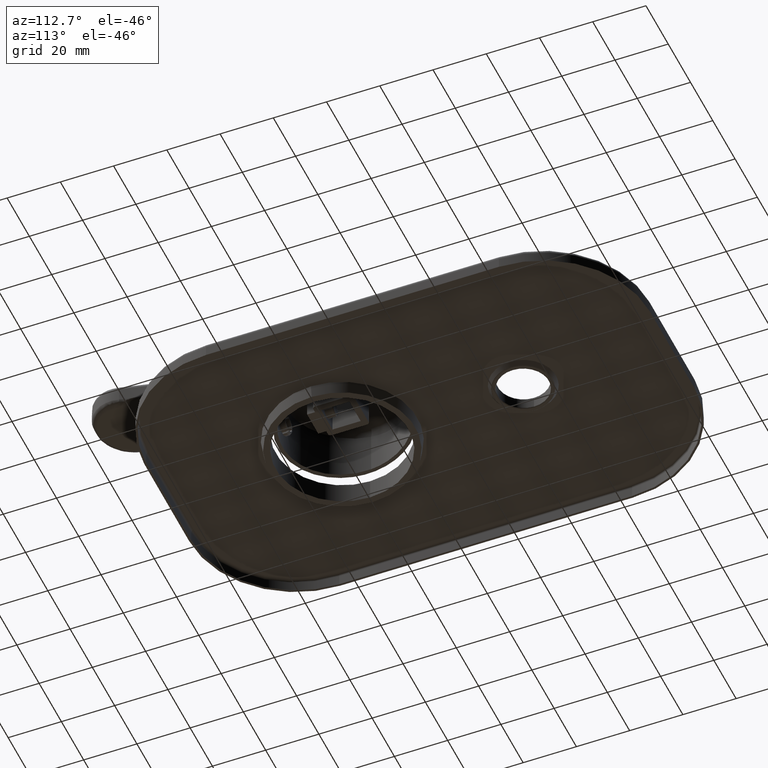
[diagram: clean part render]
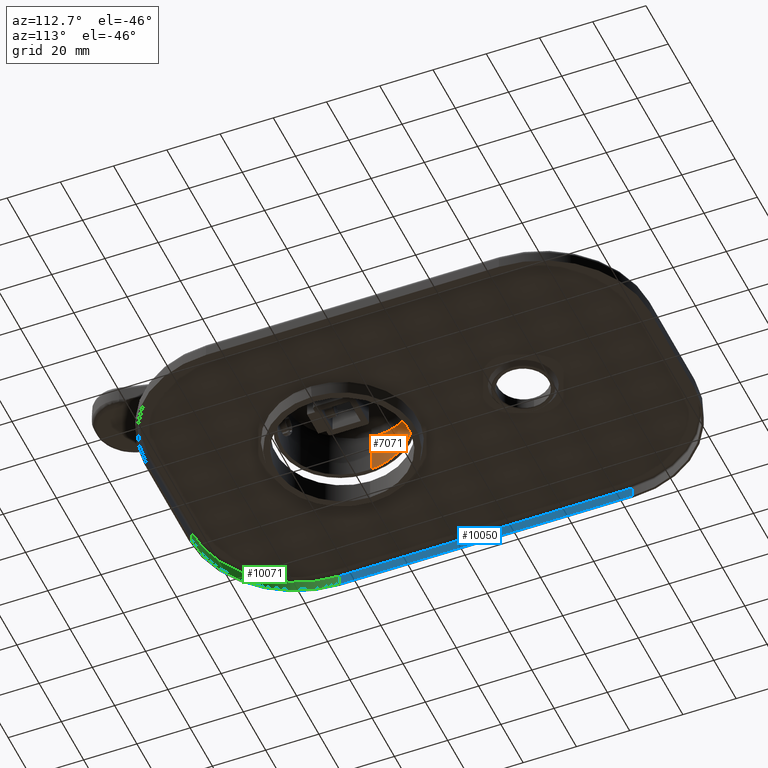
[diagram: same view with three faces highlighted in distinct colors, each labeled with its STEP entity id]
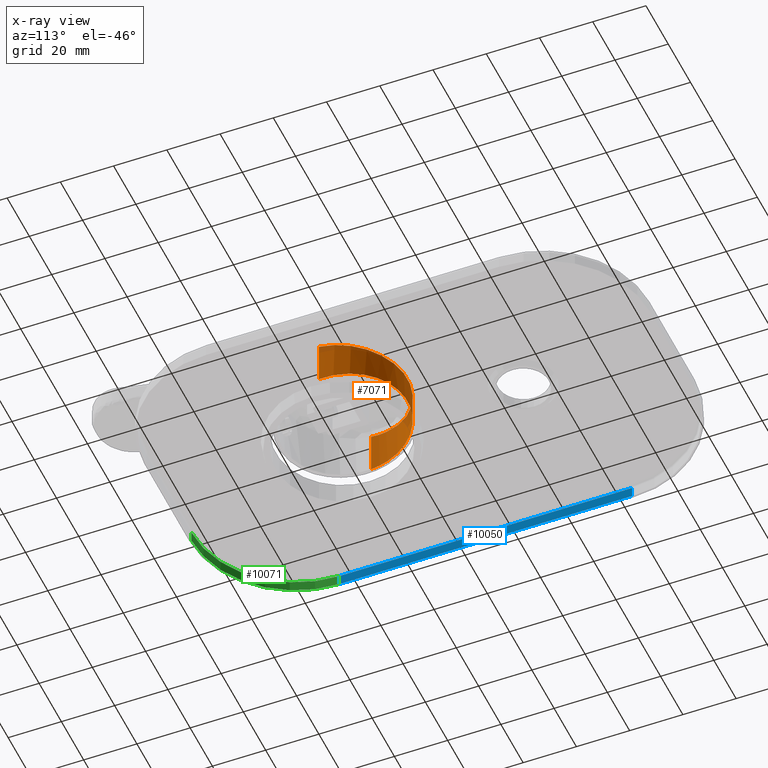
[diagram: x-ray of the same camera — body ghosted, the three highlighted faces saturated]
A machine part, auxiliary view with three faces highlighted in distinct colors.
The next image is the same camera in x-ray (body ghosted, the three faces saturated) — at least one of them is partly hidden behind the body in this view.
Their STEP definitions:

[orange] entity #7071 — the highlighted cylindrical surface (partial cylindrical patch) has radius 23.5 mm, axis along (0, 0, 1).
#321=CARTESIAN_POINT('',(-2.35E1,0.E0,2.187216588148E0));
#355=CARTESIAN_POINT('',(2.35E1,0.E0,2.187216588148E0));
#436=DIRECTION('',(3.132787176948E-7,7.126919612064E-12,1.E0));
#437=VECTOR('',#436,1.614774316207E1);
#438=CARTESIAN_POINT('',(-2.35E1,0.E0,2.187216588148E0));
#439=LINE('',#438,#437);
#2617=CARTESIAN_POINT('',(2.35E1,0.E0,2.187216588148E0));
#2618=CARTESIAN_POINT('',(2.35E1,1.384750779824E0,2.308366583191E0));
#2619=CARTESIAN_POINT('',(2.325397954941E1,4.257898723790E0,2.559734456921E0));
#2620=CARTESIAN_POINT('',(2.200712852381E1,8.677018687111E0,2.946357356473E0));
#2621=CARTESIAN_POINT('',(2.018256875826E1,1.222565359451E1,3.256822681863E0));
#2622=CARTESIAN_POINT('',(1.827813407128E1,1.483670740611E1,3.485260290234E0));
#2623=CARTESIAN_POINT('',(1.664680307642E1,1.664678915044E1,3.643621922918E0));
#2624=CARTESIAN_POINT('',(1.483670977035E1,1.827819213944E1,3.786351190098E0));
#2625=CARTESIAN_POINT('',(1.287839366447E1,1.970624173984E1,3.911289341085E0));
#2626=CARTESIAN_POINT('',(1.080629079909E1,2.091320798303E1,4.016885204623E0));
#2627=CARTESIAN_POINT('',(8.656980760088E0,2.188897129102E1,4.102253432357E0));
#2628=CARTESIAN_POINT('',(6.467140208785E0,2.263105730269E1,4.167177545739E0));
#2629=CARTESIAN_POINT('',(4.637662283105E0,2.305855338595E1,4.204578606726E0));
#2630=CARTESIAN_POINT('',(3.187175043711E0,2.329142091812E1,4.224951875894E0));
#2631=CARTESIAN_POINT('',(2.109309592456E0,2.341338131674E1,4.235622028172E0));
#2632=CARTESIAN_POINT('',(1.222436873778E0,2.347281016058E1,4.240821378295E0));
#2633=CARTESIAN_POINT('',(5.206589211889E-1,2.349617482036E1,4.242865521153E0));
#2634=CARTESIAN_POINT('',(0.E0,2.350191258982E1,4.243367510934E0));
#2635=CARTESIAN_POINT('',(-5.206589211889E-1,2.349617482036E1,
4.242865521153E0));
#2636=CARTESIAN_POINT('',(-1.222436873778E0,2.347281016058E1,4.240821378295E0));
#2637=CARTESIAN_POINT('',(-2.109309592456E0,2.341338131674E1,4.235622028172E0));
#2638=CARTESIAN_POINT('',(-3.187175043711E0,2.329142091812E1,4.224951875894E0));
#2639=CARTESIAN_POINT('',(-4.637662283105E0,2.305855338595E1,4.204578606726E0));
#2640=CARTESIAN_POINT('',(-6.467140208785E0,2.263105730269E1,4.167177545739E0));
#2641=CARTESIAN_POINT('',(-8.656980760088E0,2.188897129102E1,4.102253432357E0));
#2642=CARTESIAN_POINT('',(-1.080629079909E1,2.091320798303E1,4.016885204623E0));
#2643=CARTESIAN_POINT('',(-1.287839366447E1,1.970624173984E1,3.911289341085E0));
#2644=CARTESIAN_POINT('',(-1.483670977035E1,1.827819213944E1,3.786351190098E0));
#2645=CARTESIAN_POINT('',(-1.664680307642E1,1.664678915044E1,3.643621922918E0));
#2646=CARTESIAN_POINT('',(-1.827813407128E1,1.483670740611E1,3.485260290234E0));
#2647=CARTESIAN_POINT('',(-2.018256875826E1,1.222565359451E1,3.256822681863E0));
#2648=CARTESIAN_POINT('',(-2.200712852381E1,8.677018687111E0,2.946357356473E0));
#2649=CARTESIAN_POINT('',(-2.325397954941E1,4.257898723790E0,2.559734456921E0));
#2650=CARTESIAN_POINT('',(-2.35E1,1.384750779824E0,2.308366583191E0));
#2651=CARTESIAN_POINT('',(-2.35E1,0.E0,2.187216588148E0));
#2653=CARTESIAN_POINT('',(2.349999494126E1,-1.150892519556E-10,
1.833495975025E1));
#2654=CARTESIAN_POINT('',(2.349998723345E1,3.296706615822E-1,1.829385961980E1));
#2655=CARTESIAN_POINT('',(2.348613029275E1,9.890371940261E-1,1.821165723506E1));
#2656=CARTESIAN_POINT('',(2.342369854109E1,1.976504181488E0,1.808851639280E1));
#2657=CARTESIAN_POINT('',(2.331977624050E1,2.960455494599E0,1.796581828949E1));
#2658=CARTESIAN_POINT('',(2.317455763746E1,3.939034014267E0,1.784381654520E1));
#2659=CARTESIAN_POINT('',(2.298834012052E1,4.910416690857E0,1.772270514450E1));
#2660=CARTESIAN_POINT('',(2.276147265262E1,5.872922301312E0,1.760269109495E1));
#2661=CARTESIAN_POINT('',(2.249437655995E1,6.824863760643E0,1.748399304046E1));
#2662=CARTESIAN_POINT('',(2.218753818184E1,7.764586273508E0,1.736683570821E1));
#2663=CARTESIAN_POINT('',(2.184151573942E1,8.690438405771E0,1.725139690951E1));
#2664=CARTESIAN_POINT('',(2.145697294931E1,9.600711400308E0,1.713789078569E1));
#2665=CARTESIAN_POINT('',(2.103465093233E1,1.049373999671E1,1.702653284359E1));
#2666=CARTESIAN_POINT('',(2.057536735936E1,1.136789762952E1,1.691755019792E1));
#2667=CARTESIAN_POINT('',(2.008000674232E1,1.222161522008E1,1.681110831043E1));
#2668=CARTESIAN_POINT('',(1.954947869912E1,1.305343480934E1,1.670738673581E1));
#2669=CARTESIAN_POINT('',(1.898475461247E1,1.386193018154E1,1.660657013343E1));
#2670=CARTESIAN_POINT('',(1.838685483289E1,1.464572781557E1,1.650885334448E1));
#2671=CARTESIAN_POINT('',(1.775685831638E1,1.540349014571E1,1.641437619937E1));
#2672=CARTESIAN_POINT('',(1.709592693870E1,1.613389413172E1,1.632329964465E1));
#2673=CARTESIAN_POINT('',(1.640527404870E1,1.683567524961E1,1.623578741168E1));
#2674=CARTESIAN_POINT('',(1.568616173051E1,1.750762744258E1,1.615201470076E1));
#2675=CARTESIAN_POINT('',(1.493989245064E1,1.814860922513E1,1.607209968982E1));
#2676=CARTESIAN_POINT('',(1.416779894557E1,1.875754779634E1,1.599616918638E1));
#2677=CARTESIAN_POINT('',(1.337125727326E1,1.933342537972E1,1.592435506142E1));
#2678=CARTESIAN_POINT('',(1.255167444036E1,1.987528802250E1,1.585680095289E1));
#2679=CARTESIAN_POINT('',(1.171049100493E1,2.038224136446E1,1.579359856918E1));
#2680=CARTESIAN_POINT('',(1.084919117846E1,2.085344519086E1,1.573484260359E1));
#2681=CARTESIAN_POINT('',(9.969289489096E0,2.128812260600E1,1.568063373799E1));
#2682=CARTESIAN_POINT('',(9.072324128921E0,2.168556244156E1,1.563108475868E1));
#2683=CARTESIAN_POINT('',(8.159847477951E0,2.204512146607E1,1.558626150301E1));
#2684=CARTESIAN_POINT('',(7.233431773173E0,2.236621969730E1,1.554622282904E1));
#2685=CARTESIAN_POINT('',(6.294672012761E0,2.264833924854E1,1.551103577982E1));
#2686=CARTESIAN_POINT('',(5.345174618222E0,2.289102771055E1,1.548077938712E1));
#2687=CARTESIAN_POINT('',(4.386554085718E0,2.309389715070E1,1.545549409976E1));
#2688=CARTESIAN_POINT('',(3.420446212600E0,2.325662081512E1,1.543520387361E1));
#2689=CARTESIAN_POINT('',(2.448499895331E0,2.337893616192E1,1.541994246863E1));
#2690=CARTESIAN_POINT('',(1.472367237750E0,2.346064606791E1,1.540975477986E1));
#2691=CARTESIAN_POINT('',(4.937010068293E-1,2.350161770514E1,1.540465657359E1));
#2692=CARTESIAN_POINT('',(-4.858306750824E-1,2.350178202868E1,
1.540463665399E1));
#2693=CARTESIAN_POINT('',(-1.464555074153E0,2.346113597682E1,1.540969493991E1));
#2694=CARTESIAN_POINT('',(-2.440803181529E0,2.337974250023E1,1.541984084209E1));
#2695=CARTESIAN_POINT('',(-3.412918119584E0,2.325772884511E1,1.543506499236E1));
#2696=CARTESIAN_POINT('',(-4.379241898225E0,2.309528744148E1,1.545532113388E1));
#2697=CARTESIAN_POINT('',(-5.338119011985E0,2.289267710027E1,1.548057509539E1));
#2698=CARTESIAN_POINT('',(-6.287906208918E0,2.265022195039E1,1.551080013223E1));
#2699=CARTESIAN_POINT('',(-7.226979982436E0,2.236830886532E1,1.554596150078E1));
#2700=CARTESIAN_POINT('',(-8.153726447089E0,2.204738998306E1,1.558597883666E1));
#2701=CARTESIAN_POINT('',(-9.066542687370E0,2.168798416486E1,1.563078424060E1));
#2702=CARTESIAN_POINT('',(-9.963847373611E0,2.129067422817E1,1.568031487268E1));
#2703=CARTESIAN_POINT('',(-1.084408366746E1,2.085610554521E1,1.573450998371E1));
#2704=CARTESIAN_POINT('',(-1.170571470421E1,2.038498878798E1,1.579325599577E1));
#2705=CARTESIAN_POINT('',(-1.254722540109E1,1.987810103855E1,1.585645168423E1));
#2706=CARTESIAN_POINT('',(-1.336713087097E1,1.933628271821E1,1.592399826417E1));
#2707=CARTESIAN_POINT('',(-1.416398768788E1,1.876043005490E1,1.599580887711E1));
#2708=CARTESIAN_POINT('',(-1.493638877405E1,1.815149714970E1,1.607173942567E1));
#2709=CARTESIAN_POINT('',(-1.568295705767E1,1.751050255601E1,1.615165769708E1));
#2710=CARTESIAN_POINT('',(-1.640235851910E1,1.683852022076E1,1.623543229315E1));
#2711=CARTESIAN_POINT('',(-1.709328881256E1,1.613669368869E1,1.632294962230E1));
#2712=CARTESIAN_POINT('',(-1.775448668783E1,1.540622844597E1,1.641403442099E1));
#2713=CARTESIAN_POINT('',(-1.838473858864E1,1.464838922318E1,1.650852296632E1));
#2714=CARTESIAN_POINT('',(-1.898288227006E1,1.386449930923E1,1.660624959225E1));
#2715=CARTESIAN_POINT('',(-1.954783646847E1,1.305589939712E1,1.670707858801E1));
#2716=CARTESIAN_POINT('',(-2.007858088618E1,1.222396331364E1,1.681081511587E1));
#2717=CARTESIAN_POINT('',(-2.057414347703E1,1.137011858474E1,1.691727477952E1));
#2718=CARTESIAN_POINT('',(-2.103361407652E1,1.049582455939E1,1.702627269174E1));
#2719=CARTESIAN_POINT('',(-2.145610763614E1,9.602652002016E0,1.713764778191E1));
#2720=CARTESIAN_POINT('',(-2.184080670305E1,8.692227728132E0,1.725117309381E1));
#2721=CARTESIAN_POINT('',(-2.218697005286E1,7.766217829750E0,1.736663353699E1));
#2722=CARTESIAN_POINT('',(-2.249393363072E1,6.826332651438E0,1.748381003493E1));
#2723=CARTESIAN_POINT('',(-2.276113878787E1,5.874226584477E0,1.760252803797E1));
#2724=CARTESIAN_POINT('',(-2.298810069503E1,4.911550150356E0,1.772256349985E1));
#2725=CARTESIAN_POINT('',(-2.317439811677E1,3.939988450947E0,1.784369934372E1));
#2726=CARTESIAN_POINT('',(-2.331968239711E1,2.961218395264E0,1.796572271527E1));
#2727=CARTESIAN_POINT('',(-2.342365602360E1,1.977045908337E0,1.808844708317E1));
#2728=CARTESIAN_POINT('',(-2.348612241668E1,9.893279461494E-1,
1.821162057151E1));
#2729=CARTESIAN_POINT('',(-2.349998594639E1,3.297709482061E-1,
1.829384614224E1));
#2730=CARTESIAN_POINT('',(-2.349999494126E1,1.150877868158E-10,
1.833495975022E1));
#2732=DIRECTION('',(-3.132787176944E-7,-7.127073297847E-12,1.E0));
#2733=VECTOR('',#2732,1.614774316210E1);
#2734=CARTESIAN_POINT('',(2.35E1,0.E0,2.187216588148E0));
#2735=LINE('',#2734,#2733);
#3639=VERTEX_POINT('',#2653);
#3640=VERTEX_POINT('',#2730);
#3645=VERTEX_POINT('',#321);
#3646=VERTEX_POINT('',#355);
#7060=CARTESIAN_POINT('',(0.E0,0.E0,0.E0));
#7061=DIRECTION('',(0.E0,0.E0,1.E0));
#7062=DIRECTION('',(-1.E0,0.E0,0.E0));
#7063=AXIS2_PLACEMENT_3D('',#7060,#7061,#7062);
#7064=CYLINDRICAL_SURFACE('',#7063,2.35E1);
#7065=ORIENTED_EDGE('',*,*,#4321,.T.);
#7066=ORIENTED_EDGE('',*,*,#4259,.T.);
#7067=ORIENTED_EDGE('',*,*,#4123,.F.);
#7068=ORIENTED_EDGE('',*,*,#4256,.F.);
#7069=EDGE_LOOP('',(#7065,#7066,#7067,#7068));
#7070=FACE_OUTER_BOUND('',#7069,.F.);
#7071=ADVANCED_FACE('',(#7070),#7064,.F.);
#2652=B_SPLINE_CURVE_WITH_KNOTS('',3,(#2617,#2618,#2619,#2620,#2621,#2622,#2623,
#2624,#2625,#2626,#2627,#2628,#2629,#2630,#2631,#2632,#2633,#2634,#2635,#2636,
#2637,#2638,#2639,#2640,#2641,#2642,#2643,#2644,#2645,#2646,#2647,#2648,#2649,
#2650,#2651),.UNSPECIFIED.,.F.,.F.,(4,1,1,1,1,1,1,1,1,1,1,1,1,1,1,1,1,1,1,1,1,1,
1,1,1,1,1,1,1,1,1,1,4),(0.E0,6.25E-2,1.25E-1,1.875E-1,2.1875E-1,2.5E-1,
2.8125E-1,3.125E-1,3.4375E-1,3.75E-1,4.0625E-1,4.375E-1,4.53125E-1,4.6875E-1,
4.84375E-1,4.921875E-1,5.E-1,5.078125E-1,5.15625E-1,5.3125E-1,5.46875E-1,
5.625E-1,5.9375E-1,6.25E-1,6.5625E-1,6.875E-1,7.1875E-1,7.5E-1,7.8125E-1,
8.125E-1,8.75E-1,9.375E-1,1.E0),.UNSPECIFIED.);
#2731=B_SPLINE_CURVE_WITH_KNOTS('',3,(#2653,#2654,#2655,#2656,#2657,#2658,#2659,
#2660,#2661,#2662,#2663,#2664,#2665,#2666,#2667,#2668,#2669,#2670,#2671,#2672,
#2673,#2674,#2675,#2676,#2677,#2678,#2679,#2680,#2681,#2682,#2683,#2684,#2685,
#2686,#2687,#2688,#2689,#2690,#2691,#2692,#2693,#2694,#2695,#2696,#2697,#2698,
#2699,#2700,#2701,#2702,#2703,#2704,#2705,#2706,#2707,#2708,#2709,#2710,#2711,
#2712,#2713,#2714,#2715,#2716,#2717,#2718,#2719,#2720,#2721,#2722,#2723,#2724,
#2725,#2726,#2727,#2728,#2729,#2730),.UNSPECIFIED.,.F.,.F.,(4,1,1,1,1,1,1,1,1,1,
1,1,1,1,1,1,1,1,1,1,1,1,1,1,1,1,1,1,1,1,1,1,1,1,1,1,1,1,1,1,1,1,1,1,1,1,1,1,1,1,
1,1,1,1,1,1,1,1,1,1,1,1,1,1,1,1,1,1,1,1,1,1,1,1,1,4),(0.E0,1.333333333333E-2,
2.666666666667E-2,4.E-2,5.333333333333E-2,6.666666666667E-2,8.E-2,
9.333333333333E-2,1.066666666667E-1,1.2E-1,1.333333333333E-1,1.466666666667E-1,
1.6E-1,1.733333333333E-1,1.866666666667E-1,2.E-1,2.133333333333E-1,
2.266666666667E-1,2.4E-1,2.533333333333E-1,2.666666666667E-1,2.8E-1,
2.933333333333E-1,3.066666666667E-1,3.2E-1,3.333333333333E-1,3.466666666667E-1,
3.6E-1,3.733333333333E-1,3.866666666667E-1,4.E-1,4.133333333333E-1,
4.266666666667E-1,4.4E-1,4.533333333333E-1,4.666666666667E-1,4.8E-1,
4.933333333333E-1,5.066666666667E-1,5.2E-1,5.333333333333E-1,5.466666666667E-1,
5.6E-1,5.733333333333E-1,5.866666666667E-1,6.E-1,6.133333333333E-1,
6.266666666667E-1,6.4E-1,6.533333333333E-1,6.666666666667E-1,6.8E-1,
6.933333333333E-1,7.066666666667E-1,7.2E-1,7.333333333333E-1,7.466666666667E-1,
7.6E-1,7.733333333333E-1,7.866666666667E-1,8.E-1,8.133333333333E-1,
8.266666666667E-1,8.4E-1,8.533333333333E-1,8.666666666667E-1,8.8E-1,
8.933333333333E-1,9.066666666667E-1,9.2E-1,9.333333333333E-1,9.466666666667E-1,
9.6E-1,9.733333333333E-1,9.866666666667E-1,1.E0),.UNSPECIFIED.);
#4123=EDGE_CURVE('',#3639,#3640,#2731,.T.);
#4256=EDGE_CURVE('',#3646,#3639,#2735,.T.);
#4259=EDGE_CURVE('',#3645,#3640,#439,.T.);
#4321=EDGE_CURVE('',#3646,#3645,#2652,.T.);

[blue] entity #10050 — the highlighted planar face has unit normal (-1, 0, 0).
#8838=DIRECTION('',(0.E0,-1.E0,0.E0));
#8839=VECTOR('',#8838,1.1E2);
#8840=CARTESIAN_POINT('',(-5.945E1,8.3E1,-1.E1));
#8841=LINE('',#8840,#8839);
#8864=DIRECTION('',(0.E0,-2.039257651631E-12,-1.E0));
#8865=VECTOR('',#8864,4.E0);
#8866=CARTESIAN_POINT('',(-5.945E1,-2.699999999999E1,-6.E0));
#8867=LINE('',#8866,#8865);
#8868=DIRECTION('',(0.E0,-1.E0,0.E0));
#8869=VECTOR('',#8868,1.1E2);
#8870=CARTESIAN_POINT('',(-5.945E1,8.3E1,-6.E0));
#8871=LINE('',#8870,#8869);
#8872=DIRECTION('',(0.E0,1.168842800325E-12,-1.E0));
#8873=VECTOR('',#8872,4.E0);
#8874=CARTESIAN_POINT('',(-5.945E1,8.3E1,-6.E0));
#8875=LINE('',#8874,#8873);
#9296=CARTESIAN_POINT('',(-5.945E1,8.3E1,-6.E0));
#9297=VERTEX_POINT('',#9296);
#9300=CARTESIAN_POINT('',(-5.945E1,-2.699999999999E1,-6.E0));
#9301=VERTEX_POINT('',#9300);
#9306=CARTESIAN_POINT('',(-5.945E1,8.3E1,-1.E1));
#9307=CARTESIAN_POINT('',(-5.945E1,-2.7E1,-1.E1));
#9308=VERTEX_POINT('',#9306);
#9309=VERTEX_POINT('',#9307);
#10037=CARTESIAN_POINT('',(-5.945E1,1.23E2,-1.E1));
#10038=DIRECTION('',(-1.E0,0.E0,0.E0));
#10039=DIRECTION('',(0.E0,-1.E0,0.E0));
#10040=AXIS2_PLACEMENT_3D('',#10037,#10038,#10039);
#10041=PLANE('',#10040);
#10042=ORIENTED_EDGE('',*,*,#9980,.T.);
#10044=ORIENTED_EDGE('',*,*,#10043,.F.);
#10046=ORIENTED_EDGE('',*,*,#10045,.F.);
#10047=ORIENTED_EDGE('',*,*,#10022,.T.);
#10048=EDGE_LOOP('',(#10042,#10044,#10046,#10047));
#10049=FACE_OUTER_BOUND('',#10048,.F.);
#10050=ADVANCED_FACE('',(#10049),#10041,.F.);
#9980=EDGE_CURVE('',#9308,#9309,#8841,.T.);
#10022=EDGE_CURVE('',#9297,#9308,#8875,.T.);
#10043=EDGE_CURVE('',#9301,#9309,#8867,.T.);
#10045=EDGE_CURVE('',#9297,#9301,#8871,.T.);

[green] entity #10071 — the highlighted cylindrical surface (partial cylindrical patch) has radius 39.2 mm, axis along (0, 0, -1).
#8833=CARTESIAN_POINT('',(-2.025E1,-2.7E1,-1.E1));
#8834=DIRECTION('',(0.E0,0.E0,-1.E0));
#8835=DIRECTION('',(0.E0,-1.E0,0.E0));
#8836=AXIS2_PLACEMENT_3D('',#8833,#8834,#8835);
#8864=DIRECTION('',(0.E0,-2.039257651631E-12,-1.E0));
#8865=VECTOR('',#8864,4.E0);
#8866=CARTESIAN_POINT('',(-5.945E1,-2.699999999999E1,-6.E0));
#8867=LINE('',#8866,#8865);
#8876=CARTESIAN_POINT('',(-2.025E1,-2.7E1,-6.E0));
#8877=DIRECTION('',(0.E0,0.E0,1.E0));
#8878=DIRECTION('',(-1.E0,0.E0,0.E0));
#8879=AXIS2_PLACEMENT_3D('',#8876,#8877,#8878);
#8889=DIRECTION('',(-1.170619157165E-12,0.E0,-1.E0));
#8890=VECTOR('',#8889,4.E0);
#8891=CARTESIAN_POINT('',(-2.025E1,-6.62E1,-6.E0));
#8892=LINE('',#8891,#8890);
#9274=CARTESIAN_POINT('',(-2.025E1,-6.62E1,-6.E0));
#9276=VERTEX_POINT('',#9274);
#9300=CARTESIAN_POINT('',(-5.945E1,-2.699999999999E1,-6.E0));
#9301=VERTEX_POINT('',#9300);
#9307=CARTESIAN_POINT('',(-5.945E1,-2.7E1,-1.E1));
#9309=VERTEX_POINT('',#9307);
#9310=CARTESIAN_POINT('',(-2.025E1,-6.62E1,-1.E1));
#9312=VERTEX_POINT('',#9310);
#10058=CARTESIAN_POINT('',(-2.025E1,-2.7E1,4.47032E1));
#10059=DIRECTION('',(0.E0,0.E0,-1.E0));
#10060=DIRECTION('',(0.E0,-1.E0,0.E0));
#10061=AXIS2_PLACEMENT_3D('',#10058,#10059,#10060);
#10062=CYLINDRICAL_SURFACE('',#10061,3.92E1);
#10063=ORIENTED_EDGE('',*,*,#9978,.F.);
#10065=ORIENTED_EDGE('',*,*,#10064,.F.);
#10067=ORIENTED_EDGE('',*,*,#10066,.F.);
#10068=ORIENTED_EDGE('',*,*,#10043,.T.);
#10069=EDGE_LOOP('',(#10063,#10065,#10067,#10068));
#10070=FACE_OUTER_BOUND('',#10069,.F.);
#10071=ADVANCED_FACE('',(#10070),#10062,.F.);
#8837=CIRCLE('',#8836,3.92E1);
#8880=CIRCLE('',#8879,3.92E1);
#9978=EDGE_CURVE('',#9312,#9309,#8837,.T.);
#10043=EDGE_CURVE('',#9301,#9309,#8867,.T.);
#10064=EDGE_CURVE('',#9276,#9312,#8892,.T.);
#10066=EDGE_CURVE('',#9301,#9276,#8880,.T.);